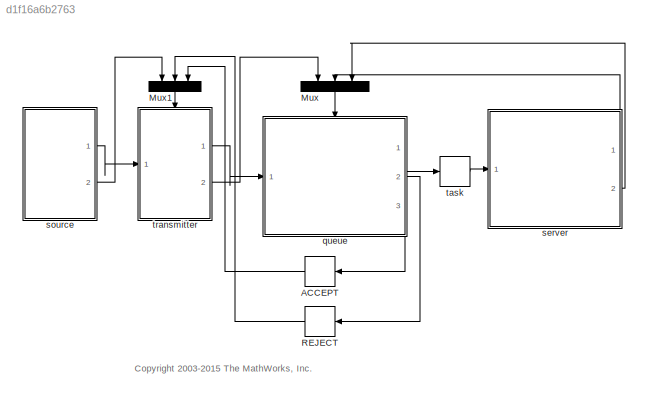
MODEL slx_d1f16a6b2763
KIND model
CONFIG AbsTol = auto
CONFIG EnableMultiTasking = on
CONFIG FixedStep = auto
CONFIG MaxStep = auto
CONFIG MinStep = auto
CONFIG PreLoadFcn = queueLength = 10;
CONFIG RelTol = 1e-3
CONFIG SampleTimeConstraint = Unconstrained
CONFIG Solver = ode45
CONFIG SolverName = ode45
CONFIG StartTime = 0.0
CONFIG StopTime = inf
BLOCK [Memory] ACCEPT
BLOCK [Mux] Mux
  DisplayOption = bar
  Inputs = 3
  Ports = [3, 1]
BLOCK [Mux] Mux1
  DisplayOption = bar
  Inputs = 3
  Ports = [3, 1]
BLOCK [Memory] REJECT
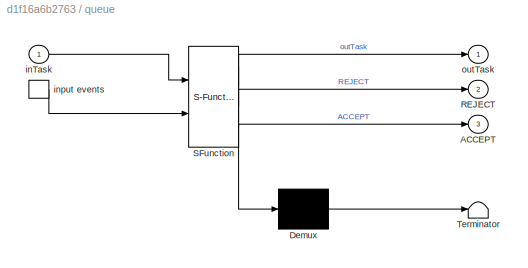
BLOCK [SubSystem] queue
  ErrorFcn = Stateflow.Translate.translate
  PermitHierarchicalResolution = ExplicitOnly
  Ports = [1, 3, 0, 1]
  RequestExecContextInheritance = off
  SFBlockType = Chart
  TreatAsAtomicUnit = on
  Variant = off
BLOCK [Demux] queue/ Demux 
  Outputs = 1
  Ports = [1, 1]
BLOCK [S-Function] queue/ SFunction 
  EnableBusSupport = off
  FunctionName = sf_sfun
  PortCounts = [2 4]
  Ports = [2, 4]
  SFcnIsStateOwnerBlock = off
  SFunctionDeploymentMode = off
  Tag = Stateflow S-Function sf_server 1
BLOCK [Terminator] queue/ Terminator 
BLOCK [TriggerPort] queue/ input events 
  Ports = [0, 1]
  ShowOutputPort = on
  StatesWhenEnabling = reset
  TriggerType = either
  VariantControl = Variant
BLOCK [Outport] queue/ACCEPT
  IconDisplay = Port number
  Port = 3
BLOCK [Outport] queue/REJECT
  IconDisplay = Port number
  Port = 2
BLOCK [Inport] queue/inTask
  IconDisplay = Port number
BLOCK [Outport] queue/outTask
  IconDisplay = Port number
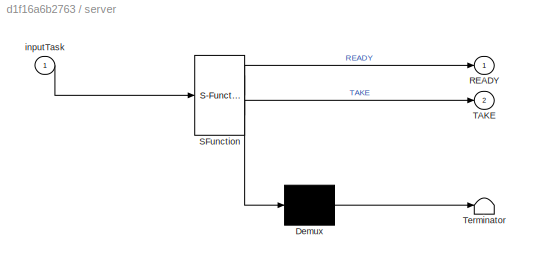
BLOCK [SubSystem] server
  ErrorFcn = Stateflow.Translate.translate
  PermitHierarchicalResolution = ExplicitOnly
  Ports = [1, 2]
  RequestExecContextInheritance = off
  SFBlockType = Chart
  TreatAsAtomicUnit = on
  Variant = off
BLOCK [Demux] server/ Demux 
  Outputs = 1
  Ports = [1, 1]
BLOCK [S-Function] server/ SFunction 
  EnableBusSupport = off
  FunctionName = sf_sfun
  PortCounts = [1 3]
  Ports = [1, 3]
  SFcnIsStateOwnerBlock = off
  SFunctionDeploymentMode = off
  Tag = Stateflow S-Function sf_server 2
BLOCK [Terminator] server/ Terminator 
BLOCK [Outport] server/READY
  IconDisplay = Port number
BLOCK [Outport] server/TAKE
  IconDisplay = Port number
  Port = 2
BLOCK [Inport] server/inputTask
  IconDisplay = Port number
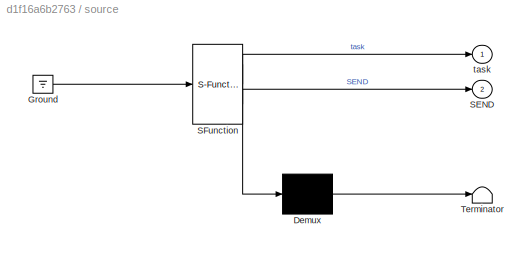
BLOCK [SubSystem] source
  ErrorFcn = Stateflow.Translate.translate
  PermitHierarchicalResolution = ExplicitOnly
  Ports = [0, 2]
  RequestExecContextInheritance = off
  SFBlockType = Chart
  TreatAsAtomicUnit = on
  Variant = off
BLOCK [Demux] source/ Demux 
  Outputs = 1
  Ports = [1, 1]
BLOCK [Ground] source/ Ground 
BLOCK [S-Function] source/ SFunction 
  EnableBusSupport = off
  FunctionName = sf_sfun
  PortCounts = [1 3]
  Ports = [1, 3]
  SFcnIsStateOwnerBlock = off
  SFunctionDeploymentMode = off
  Tag = Stateflow S-Function sf_server 4
BLOCK [Terminator] source/ Terminator 
BLOCK [Outport] source/SEND
  IconDisplay = Port number
  Port = 2
BLOCK [Outport] source/task
  IconDisplay = Port number
BLOCK [Memory] task
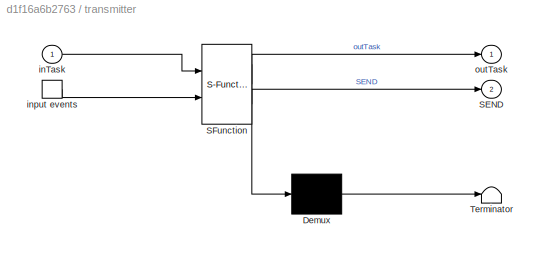
BLOCK [SubSystem] transmitter
  ErrorFcn = Stateflow.Translate.translate
  PermitHierarchicalResolution = ExplicitOnly
  Ports = [1, 2, 0, 1]
  RequestExecContextInheritance = off
  SFBlockType = Chart
  TreatAsAtomicUnit = on
  Variant = off
BLOCK [Demux] transmitter/ Demux 
  Outputs = 1
  Ports = [1, 1]
BLOCK [S-Function] transmitter/ SFunction 
  EnableBusSupport = off
  FunctionName = sf_sfun
  PortCounts = [2 3]
  Ports = [2, 3]
  SFcnIsStateOwnerBlock = off
  SFunctionDeploymentMode = off
  Tag = Stateflow S-Function sf_server 3
BLOCK [Terminator] transmitter/ Terminator 
BLOCK [TriggerPort] transmitter/ input events 
  Ports = [0, 1]
  ShowOutputPort = on
  StatesWhenEnabling = reset
  TriggerType = either
  VariantControl = Variant
BLOCK [Outport] transmitter/SEND
  IconDisplay = Port number
  Port = 2
BLOCK [Inport] transmitter/inTask
  IconDisplay = Port number
BLOCK [Outport] transmitter/outTask
  IconDisplay = Port number
ANNOTATION (root): <copyright redacted>
LINE ACCEPT:1 -> Mux1:3
LINE Mux1:1 -> transmitter:trigger
LINE Mux:1 -> queue:trigger
LINE REJECT:1 -> Mux1:2
LINE queue:1 -> task:1
LINE queue:2 -> REJECT:1
LINE queue:3 -> ACCEPT:1
LINE server:1 -> Mux:2
LINE server:2 -> Mux:3
LINE source:1 -> transmitter:1
LINE source:2 -> Mux1:1
LINE task:1 -> server:1
LINE transmitter:1 -> queue:1
LINE transmitter:2 -> Mux:1
CHART queue states=7 transitions=17
  STATE_LABEL 'Queue'
  STATE_LABEL 'b = is_empty()'
  STATE_LABEL '{b = front == back && !incremented;}'
  STATE_LABEL 'b = is_full()'
  STATE_LABEL '{b = front == back && incremented;}'
  STATE_LABEL 'next = increment(i)'
  STATE_LABEL '{next = i+1;}'
  STATE_LABEL '[next > queueLength]\n{next = 1;}'
  STATE_LABEL 'enqueue(d)'
  STATE_LABEL "[is_full()]\n{ml.error('Queue overflow');}"
  STATE_LABEL '{back = increment(back);\nincremented = 1;\ndata[back] = d;\nset_queue(data, front, back, is_full());}'
  STATE_LABEL 'd = dequeue()'
  STATE_LABEL "[is_empty()]\n{ml.error('Queue underflow');}"
  STATE_LABEL '{front = increment(front);\nincremented = 0;\nd = data[front];\nset_queue(data, front, back, 0);}'
  STATE_LABEL 'b = is_empty()'
  STATE_LABEL '{b = front == back && !incremented;}'
  STATE_LABEL 'b = is_full()'
  STATE_LABEL '{b = front == back && incremented;}'
  STATE_LABEL 'next = increment(i)'
  STATE_LABEL '{next = i+1;}'
  STATE_LABEL '[next > queueLength]\n{next = 1;}'
  STATE_LABEL 'enqueue(d)'
  STATE_LABEL "[is_full()]\n{ml.error('Queue overflow');}"
  STATE_LABEL '{back = increment(back);\nincremented = 1;\ndata[back] = d;\nset_queue(data, front, back, is_full());}'
  STATE_LABEL 'd = dequeue()'
  STATE_LABEL "[is_empty()]\n{ml.error('Queue underflow');}"
  STATE_LABEL '{front = increment(front);\nincremented = 0;\nd = data[front];\nset_queue(data, front, back, 0);}'
  STATE_LABEL 'set_queue(queue, front, back, isFull)'
  STATE_LABEL "SCRIPT:\nfunction set_queue(queue, front, back, isFull)\n\n    coder.extrinsic('int2str', 'set', 'sf_server_handle_map');\n    \n    for i = queueLength:-1:1\n\n        if front ~= back || isFull\n            front = increment(front);\n            isFull = 0;\n            set(sf_server_handle_map('queueText', i), 'String', int2str(queue(front)));\n        else\n            set(sf_server_handle_map('queueText'...<+137ch>"
CHART server states=3 transitions=4
  STATE_LABEL 'Idle\nREADY;'
  STATE_LABEL 'Busy'
  STATE_LABEL 'process_task(task)'
  STATE_LABEL "SCRIPT:\nfunction process_task(task)\n\ncoder.extrinsic('int2str', 'set', 'sf_server_handle_map');\nprocessText = sf_server_handle_map('processText');\nstring = ' ';\n\nif task\n    string = int2str(task);\nend\n\nset(processText, 'String', string);"
CHART transmitter states=4 transitions=3
  STATE_LABEL 'init_gui'
  STATE_LABEL "SCRIPT:\nfunction init_gui\n\ncoder.extrinsic('set', 'findall', 'figure', 'delete', 'axes', 'text', 'rectangle', 'sf_server_handle_map', 'is_invalid_gui_obj_handle');\nfig = sf_server_handle_map('fig');\n\nif is_invalid_gui_obj_handle(fig)\n    % see if there is an existing figure\n    figTemp = findall(0, 'type', 'figure', 'tag', 'SF_SERVER');\n    if ~isempty(figTemp)\n        deleteFig = 0;\n        \n    ...<+3608ch>"
  STATE_LABEL 'send_task(task)'
  STATE_LABEL "SCRIPT:\nfunction send_task(task)\ncoder.extrinsic('set', 'ishandle', 'int2str', 'sf_server_handle_map', 'is_invalid_gui_obj_handle');\nfig = sf_server_handle_map('fig');\nif is_invalid_gui_obj_handle(fig)\n    init_gui;    \nend\nsendText = sf_server_handle_map('sendText');\nset(sendText, 'String', int2str(task), 'Color', 'blue');\n\n\n"
  STATE_LABEL 'reject_task'
  STATE_LABEL "SCRIPT:\nfunction reject_task\ncoder.extrinsic('set', 'ishandle', 'sf_server_handle_map', 'is_invalid_gui_obj_handle');\nfig = sf_server_handle_map('fig');\nif is_invalid_gui_obj_handle(fig)\n    init_gui;\nend\nsendText = sf_server_handle_map('sendText');\nset(sendText, 'Color', 'red');\n"
  STATE_LABEL 'accept_task'
  STATE_LABEL "SCRIPT:\nfunction accept_task\ncoder.extrinsic('set', 'ishandle', 'sf_server_handle_map', 'is_invalid_gui_obj_handle');\nfig = sf_server_handle_map('fig');\nif is_invalid_gui_obj_handle(fig)\n    init_gui;\nend\nsendText = sf_server_handle_map('sendText');\nset(sendText, 'String', '');\n"
CHART source states=2 transitions=21
  STATE_LABEL 'Send'
  STATE_LABEL 'Pause\nex: ml.pause(.1);'
